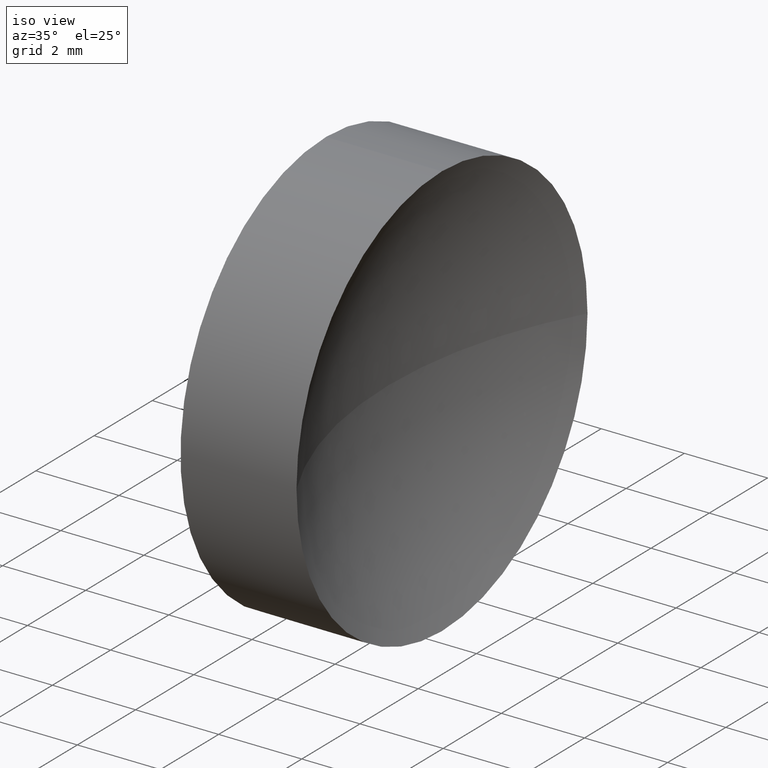
[diagram: clean part render]
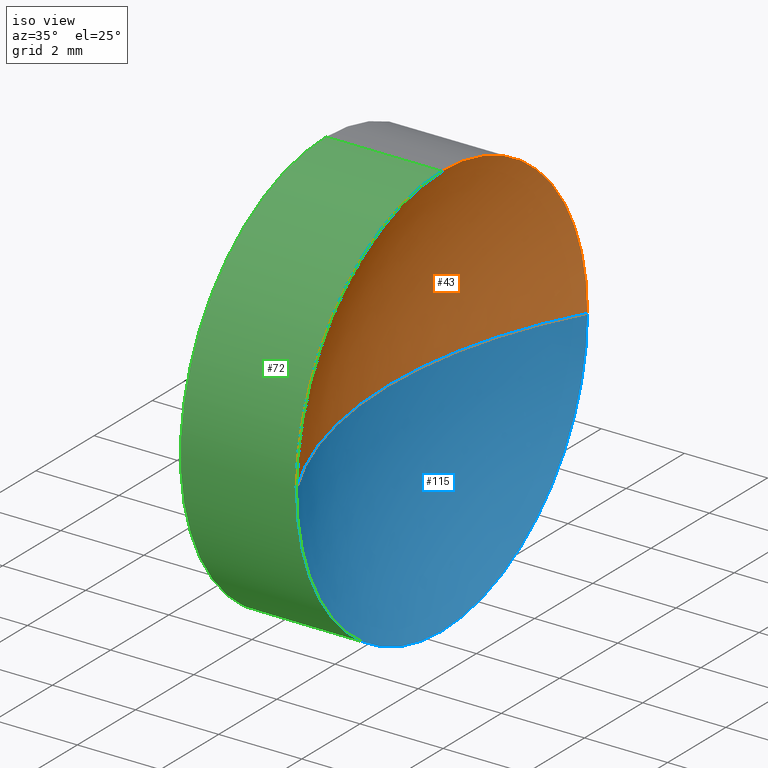
[diagram: same view with three faces highlighted in distinct colors, each labeled with its STEP entity id]
A machine part, iso view with three faces highlighted in distinct colors.
Their STEP definitions:

[orange] entity #43 — the highlighted spherical surface has radius 10.3349 mm.
#3 = CARTESIAN_POINT ( 'NONE',  ( 56.15451910418161700, 26.08904114919495500, 0.0000000000000000000 ) ) ;
#9 = VERTEX_POINT ( 'NONE', #184 ) ;
#18 = ORIENTED_EDGE ( 'NONE', *, *, #103, .T. ) ;
#21 = AXIS2_PLACEMENT_3D ( 'NONE', #93, #95, #32 ) ;
#25 = DIRECTION ( 'NONE',  ( 0.0000000000000000000, 1.000000000000000000, 0.0000000000000000000 ) ) ;
#29 = DIRECTION ( 'NONE',  ( 0.0000000000000000000, 1.000000000000000000, 1.224646799147353500E-016 ) ) ;
#31 = VERTEX_POINT ( 'NONE', #155 ) ;
#32 = DIRECTION ( 'NONE',  ( 0.0000000000000000000, 0.0000000000000000000, 1.000000000000000000 ) ) ;
#43 = ADVANCED_FACE ( 'NONE', ( #181 ), #136, .F. ) ;
#44 = AXIS2_PLACEMENT_3D ( 'NONE', #49, #151, #29 ) ;
#48 = DIRECTION ( 'NONE',  ( 1.000000000000000000, 0.0000000000000000000, 0.0000000000000000000 ) ) ;
#49 = CARTESIAN_POINT ( 'NONE',  ( 56.15451910418161700, 26.08904114919495500, 0.0000000000000000000 ) ) ;
#55 = AXIS2_PLACEMENT_3D ( 'NONE', #3, #144, #25 ) ;
#58 = CIRCLE ( 'NONE', #129, 5.000000000000000900 ) ;
#60 = EDGE_CURVE ( 'NONE', #132, #31, #58, .T. ) ;
#61 = CARTESIAN_POINT ( 'NONE',  ( 47.10958549791029500, 26.08904114919495900, 0.0000000000000000000 ) ) ;
#74 = ORIENTED_EDGE ( 'NONE', *, *, #60, .F. ) ;
#77 = EDGE_LOOP ( 'NONE', ( #74, #18, #116, #159 ) ) ;
#81 = CARTESIAN_POINT ( 'NONE',  ( 56.15451910418161700, 26.08904114919495500, 0.0000000000000000000 ) ) ;
#86 = CIRCLE ( 'NONE', #21, 5.000000000000000900 ) ;
#93 = CARTESIAN_POINT ( 'NONE',  ( 47.10958549791029500, 26.08904114919495900, 0.0000000000000000000 ) ) ;
#95 = DIRECTION ( 'NONE',  ( -1.000000000000000000, -0.0000000000000000000, -0.0000000000000000000 ) ) ;
#99 = CIRCLE ( 'NONE', #44, 10.33493221757435200 ) ;
#103 = EDGE_CURVE ( 'NONE', #132, #118, #99, .T. ) ;
#116 = ORIENTED_EDGE ( 'NONE', *, *, #143, .F. ) ;
#118 = VERTEX_POINT ( 'NONE', #145 ) ;
#129 = AXIS2_PLACEMENT_3D ( 'NONE', #61, #175, #147 ) ;
#132 = VERTEX_POINT ( 'NONE', #180 ) ;
#136 = SPHERICAL_SURFACE ( 'NONE', #55, 10.33493221757435200 ) ;
#140 = AXIS2_PLACEMENT_3D ( 'NONE', #81, #148, #48 ) ;
#143 = EDGE_CURVE ( 'NONE', #9, #118, #185, .T. ) ;
#144 = DIRECTION ( 'NONE',  ( 0.0000000000000000000, 0.0000000000000000000, -1.000000000000000000 ) ) ;
#145 = CARTESIAN_POINT ( 'NONE',  ( 45.81958688660726200, 26.08904114919495500, 0.0000000000000000000 ) ) ;
#147 = DIRECTION ( 'NONE',  ( 0.0000000000000000000, 0.0000000000000000000, 1.000000000000000000 ) ) ;
#148 = DIRECTION ( 'NONE',  ( 0.0000000000000000000, 0.0000000000000000000, 1.000000000000000000 ) ) ;
#151 = DIRECTION ( 'NONE',  ( 0.0000000000000000000, 1.224646799147353200E-016, -1.000000000000000000 ) ) ;
#155 = CARTESIAN_POINT ( 'NONE',  ( 47.10958549791029500, 26.08904114919495900, 5.000000000000000900 ) ) ;
#159 = ORIENTED_EDGE ( 'NONE', *, *, #160, .F. ) ;
#160 = EDGE_CURVE ( 'NONE', #31, #9, #86, .T. ) ;
#175 = DIRECTION ( 'NONE',  ( -1.000000000000000000, -0.0000000000000000000, -0.0000000000000000000 ) ) ;
#180 = CARTESIAN_POINT ( 'NONE',  ( 47.10958549791029500, 21.08904114919495100, -6.123233995736770200E-016 ) ) ;
#181 = FACE_OUTER_BOUND ( 'NONE', #77, .T. ) ;
#184 = CARTESIAN_POINT ( 'NONE',  ( 47.10958549791029500, 31.08904114919496200, 0.0000000000000000000 ) ) ;
#185 = CIRCLE ( 'NONE', #140, 10.33493221757434600 ) ;

[blue] entity #115 — the highlighted spherical surface has radius 10.3349 mm.
#6 = EDGE_LOOP ( 'NONE', ( #57, #97, #117, #152 ) ) ;
#7 = DIRECTION ( 'NONE',  ( -1.000000000000000000, -0.0000000000000000000, -0.0000000000000000000 ) ) ;
#9 = VERTEX_POINT ( 'NONE', #184 ) ;
#11 = DIRECTION ( 'NONE',  ( 0.0000000000000000000, 1.000000000000000000, 0.0000000000000000000 ) ) ;
#20 = DIRECTION ( 'NONE',  ( 0.0000000000000000000, 0.0000000000000000000, 1.000000000000000000 ) ) ;
#29 = DIRECTION ( 'NONE',  ( 0.0000000000000000000, 1.000000000000000000, 1.224646799147353500E-016 ) ) ;
#37 = EDGE_CURVE ( 'NONE', #83, #132, #79, .T. ) ;
#44 = AXIS2_PLACEMENT_3D ( 'NONE', #49, #151, #29 ) ;
#48 = DIRECTION ( 'NONE',  ( 1.000000000000000000, 0.0000000000000000000, 0.0000000000000000000 ) ) ;
#49 = CARTESIAN_POINT ( 'NONE',  ( 56.15451910418161700, 26.08904114919495500, 0.0000000000000000000 ) ) ;
#57 = ORIENTED_EDGE ( 'NONE', *, *, #103, .F. ) ;
#69 = FACE_OUTER_BOUND ( 'NONE', #6, .T. ) ;
#71 = CIRCLE ( 'NONE', #170, 5.000000000000000900 ) ;
#79 = CIRCLE ( 'NONE', #90, 5.000000000000000900 ) ;
#81 = CARTESIAN_POINT ( 'NONE',  ( 56.15451910418161700, 26.08904114919495500, 0.0000000000000000000 ) ) ;
#82 = CARTESIAN_POINT ( 'NONE',  ( 56.15451910418161700, 26.08904114919495500, 0.0000000000000000000 ) ) ;
#83 = VERTEX_POINT ( 'NONE', #104 ) ;
#90 = AXIS2_PLACEMENT_3D ( 'NONE', #182, #7, #20 ) ;
#97 = ORIENTED_EDGE ( 'NONE', *, *, #37, .F. ) ;
#98 = DIRECTION ( 'NONE',  ( 0.0000000000000000000, 0.0000000000000000000, 1.000000000000000000 ) ) ;
#99 = CIRCLE ( 'NONE', #44, 10.33493221757435200 ) ;
#103 = EDGE_CURVE ( 'NONE', #132, #118, #99, .T. ) ;
#104 = CARTESIAN_POINT ( 'NONE',  ( 47.10958549791029500, 26.08904114919495900, -5.000000000000000900 ) ) ;
#107 = CARTESIAN_POINT ( 'NONE',  ( 47.10958549791029500, 26.08904114919495900, 0.0000000000000000000 ) ) ;
#114 = AXIS2_PLACEMENT_3D ( 'NONE', #82, #137, #11 ) ;
#115 = ADVANCED_FACE ( 'NONE', ( #69 ), #158, .F. ) ;
#117 = ORIENTED_EDGE ( 'NONE', *, *, #154, .F. ) ;
#118 = VERTEX_POINT ( 'NONE', #145 ) ;
#132 = VERTEX_POINT ( 'NONE', #180 ) ;
#137 = DIRECTION ( 'NONE',  ( 0.0000000000000000000, 0.0000000000000000000, -1.000000000000000000 ) ) ;
#140 = AXIS2_PLACEMENT_3D ( 'NONE', #81, #148, #48 ) ;
#143 = EDGE_CURVE ( 'NONE', #9, #118, #185, .T. ) ;
#145 = CARTESIAN_POINT ( 'NONE',  ( 45.81958688660726200, 26.08904114919495500, 0.0000000000000000000 ) ) ;
#148 = DIRECTION ( 'NONE',  ( 0.0000000000000000000, 0.0000000000000000000, 1.000000000000000000 ) ) ;
#151 = DIRECTION ( 'NONE',  ( 0.0000000000000000000, 1.224646799147353200E-016, -1.000000000000000000 ) ) ;
#152 = ORIENTED_EDGE ( 'NONE', *, *, #143, .T. ) ;
#154 = EDGE_CURVE ( 'NONE', #9, #83, #71, .T. ) ;
#158 = SPHERICAL_SURFACE ( 'NONE', #114, 10.33493221757435200 ) ;
#164 = DIRECTION ( 'NONE',  ( -1.000000000000000000, -0.0000000000000000000, -0.0000000000000000000 ) ) ;
#170 = AXIS2_PLACEMENT_3D ( 'NONE', #107, #164, #98 ) ;
#180 = CARTESIAN_POINT ( 'NONE',  ( 47.10958549791029500, 21.08904114919495100, -6.123233995736770200E-016 ) ) ;
#182 = CARTESIAN_POINT ( 'NONE',  ( 47.10958549791029500, 26.08904114919495900, 0.0000000000000000000 ) ) ;
#184 = CARTESIAN_POINT ( 'NONE',  ( 47.10958549791029500, 31.08904114919496200, 0.0000000000000000000 ) ) ;
#185 = CIRCLE ( 'NONE', #140, 10.33493221757434600 ) ;

[green] entity #72 — the highlighted cylindrical surface (partial cylindrical patch) has radius 5 mm, axis along (-1, -0, -0).
#1 = CARTESIAN_POINT ( 'NONE',  ( 42.44986111413682300, 26.08904114919495900, 0.0000000000000000000 ) ) ;
#2 = EDGE_LOOP ( 'NONE', ( #91, #8, #127, #131, #171 ) ) ;
#7 = DIRECTION ( 'NONE',  ( -1.000000000000000000, -0.0000000000000000000, -0.0000000000000000000 ) ) ;
#8 = ORIENTED_EDGE ( 'NONE', *, *, #37, .T. ) ;
#20 = DIRECTION ( 'NONE',  ( 0.0000000000000000000, 0.0000000000000000000, 1.000000000000000000 ) ) ;
#27 = LINE ( 'NONE', #172, #105 ) ;
#28 = CARTESIAN_POINT ( 'NONE',  ( 44.31958549791029600, 26.08904114919495900, -5.000000000000000900 ) ) ;
#31 = VERTEX_POINT ( 'NONE', #155 ) ;
#37 = EDGE_CURVE ( 'NONE', #83, #132, #79, .T. ) ;
#39 = EDGE_CURVE ( 'NONE', #31, #153, #27, .T. ) ;
#45 = DIRECTION ( 'NONE',  ( 0.0000000000000000000, 0.0000000000000000000, 1.000000000000000000 ) ) ;
#58 = CIRCLE ( 'NONE', #129, 5.000000000000000900 ) ;
#60 = EDGE_CURVE ( 'NONE', #132, #31, #58, .T. ) ;
#61 = CARTESIAN_POINT ( 'NONE',  ( 47.10958549791029500, 26.08904114919495900, 0.0000000000000000000 ) ) ;
#64 = DIRECTION ( 'NONE',  ( 0.0000000000000000000, 0.0000000000000000000, 1.000000000000000000 ) ) ;
#65 = AXIS2_PLACEMENT_3D ( 'NONE', #1, #133, #45 ) ;
#72 = ADVANCED_FACE ( 'NONE', ( #108 ), #96, .T. ) ;
#73 = VERTEX_POINT ( 'NONE', #28 ) ;
#79 = CIRCLE ( 'NONE', #90, 5.000000000000000900 ) ;
#80 = CARTESIAN_POINT ( 'NONE',  ( 44.31958549791029600, 26.08904114919495900, 0.0000000000000000000 ) ) ;
#83 = VERTEX_POINT ( 'NONE', #104 ) ;
#90 = AXIS2_PLACEMENT_3D ( 'NONE', #182, #7, #20 ) ;
#91 = ORIENTED_EDGE ( 'NONE', *, *, #110, .F. ) ;
#96 = CYLINDRICAL_SURFACE ( 'NONE', #65, 5.000000000000000900 ) ;
#104 = CARTESIAN_POINT ( 'NONE',  ( 47.10958549791029500, 26.08904114919495900, -5.000000000000000900 ) ) ;
#105 = VECTOR ( 'NONE', #128, 1000.000000000000000 ) ;
#108 = FACE_OUTER_BOUND ( 'NONE', #2, .T. ) ;
#110 = EDGE_CURVE ( 'NONE', #83, #73, #142, .T. ) ;
#119 = EDGE_CURVE ( 'NONE', #73, #153, #124, .T. ) ;
#121 = CARTESIAN_POINT ( 'NONE',  ( 44.31958549791029600, 26.08904114919495900, 5.000000000000000900 ) ) ;
#124 = CIRCLE ( 'NONE', #149, 5.000000000000000900 ) ;
#127 = ORIENTED_EDGE ( 'NONE', *, *, #60, .T. ) ;
#128 = DIRECTION ( 'NONE',  ( -1.000000000000000000, -0.0000000000000000000, -0.0000000000000000000 ) ) ;
#129 = AXIS2_PLACEMENT_3D ( 'NONE', #61, #175, #147 ) ;
#131 = ORIENTED_EDGE ( 'NONE', *, *, #39, .T. ) ;
#132 = VERTEX_POINT ( 'NONE', #180 ) ;
#133 = DIRECTION ( 'NONE',  ( -1.000000000000000000, -0.0000000000000000000, -0.0000000000000000000 ) ) ;
#139 = DIRECTION ( 'NONE',  ( -1.000000000000000000, -0.0000000000000000000, -0.0000000000000000000 ) ) ;
#142 = LINE ( 'NONE', #162, #165 ) ;
#147 = DIRECTION ( 'NONE',  ( 0.0000000000000000000, 0.0000000000000000000, 1.000000000000000000 ) ) ;
#149 = AXIS2_PLACEMENT_3D ( 'NONE', #80, #139, #64 ) ;
#153 = VERTEX_POINT ( 'NONE', #121 ) ;
#155 = CARTESIAN_POINT ( 'NONE',  ( 47.10958549791029500, 26.08904114919495900, 5.000000000000000900 ) ) ;
#162 = CARTESIAN_POINT ( 'NONE',  ( 42.44986111413682300, 26.08904114919495900, -5.000000000000000900 ) ) ;
#165 = VECTOR ( 'NONE', #166, 1000.000000000000000 ) ;
#166 = DIRECTION ( 'NONE',  ( -1.000000000000000000, -0.0000000000000000000, -0.0000000000000000000 ) ) ;
#171 = ORIENTED_EDGE ( 'NONE', *, *, #119, .F. ) ;
#172 = CARTESIAN_POINT ( 'NONE',  ( 42.44986111413682300, 26.08904114919495900, 5.000000000000000900 ) ) ;
#175 = DIRECTION ( 'NONE',  ( -1.000000000000000000, -0.0000000000000000000, -0.0000000000000000000 ) ) ;
#180 = CARTESIAN_POINT ( 'NONE',  ( 47.10958549791029500, 21.08904114919495100, -6.123233995736770200E-016 ) ) ;
#182 = CARTESIAN_POINT ( 'NONE',  ( 47.10958549791029500, 26.08904114919495900, 0.0000000000000000000 ) ) ;